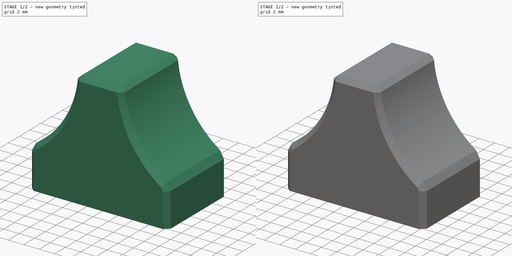
[diagram: build sequence overview — one tinted view per stage of 2, left to right]
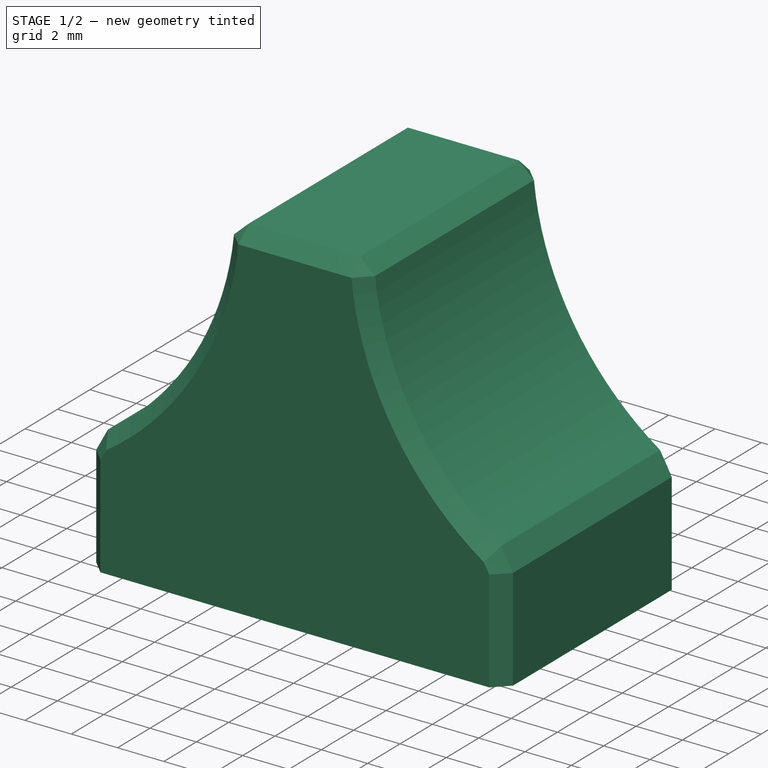
[diagram: stage 1 of 2 — iso view after this stage's code; geometry added in this stage tinted green]
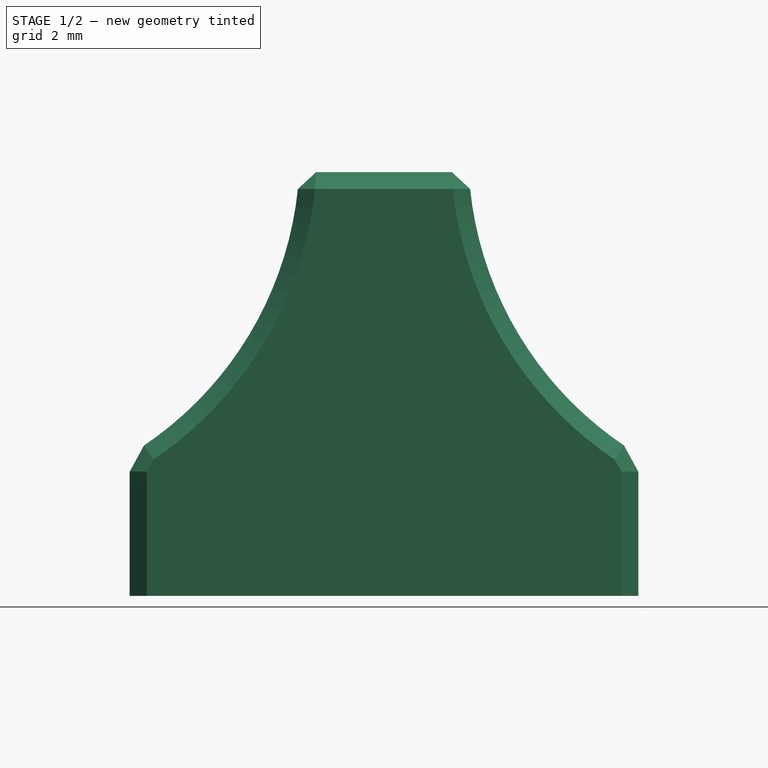
[diagram: stage 1 of 2 — front view after this stage's code; geometry added in this stage tinted green]
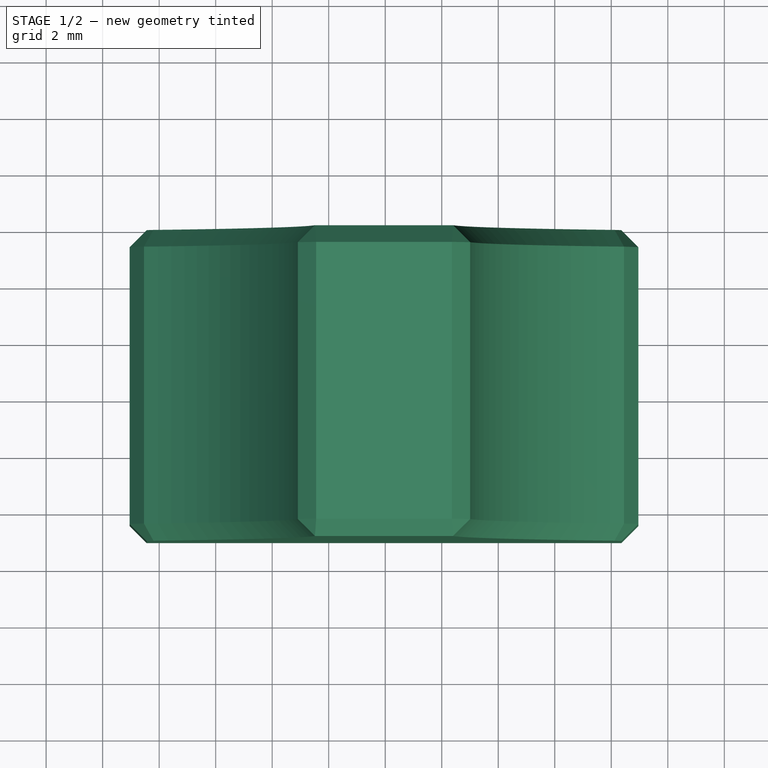
[diagram: stage 1 of 2 — top view after this stage's code; geometry added in this stage tinted green]
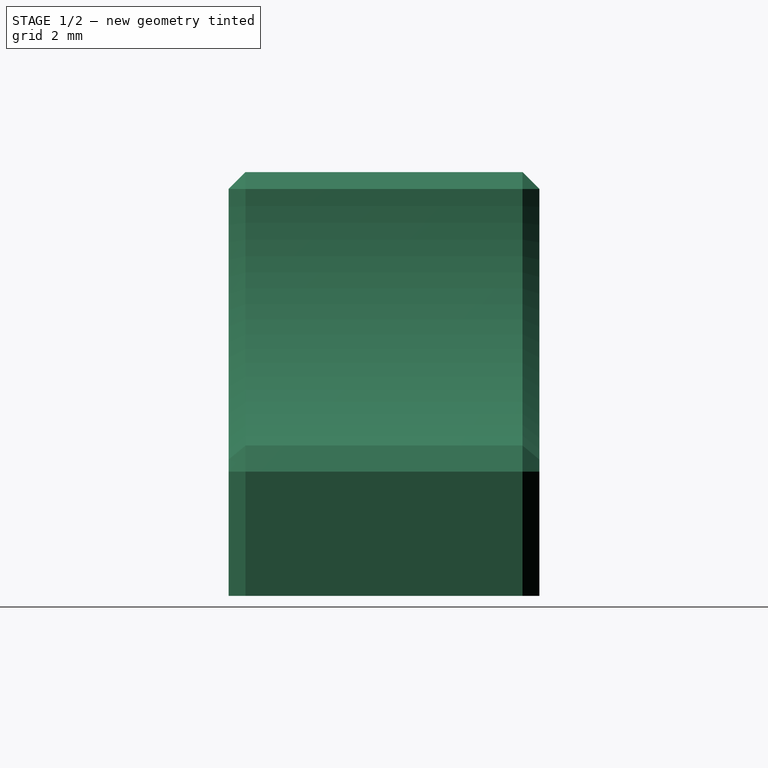
[diagram: stage 1 of 2 — right view after this stage's code; geometry added in this stage tinted green]
FCSTD DOCUMENT  (FreeCAD 1.0R39109 (Git))
Label: sliderbutton
License: All rights reserved
objects: Sketcher::SketchObject×3, PartDesign::Pocket×2, PartDesign::Pad×1, PartDesign::Chamfer×1, PartDesign::Body×1, App::Part×1
note: 19 computed .brp shape members not serialized (recipe doc carries the construction recipe); baked Part::Feature solids carry a one-line shape summary decoded from their .brp

FEATURE [Sketcher::SketchObject] Sketch
  ArcFitTolerance = 1e-06
  AttachmentSupport = -> [XZ_Plane001]
  FullyConstrained = false
  MakeInternals = false
  MapMode = 5
  Placement = pos=(0,0,0) rot=(1,0,0;1.5708rad)
  sketch-geometry (6):
    g0: LineSegment StartX=2.95667 StartY=4.04019 StartZ=0 EndX=20.9567 EndY=4.04019 EndZ=0
    g1: LineSegment StartX=20.9567 StartY=4.04019 StartZ=0 EndX=20.9567 EndY=9.04019 EndZ=0
    g2: LineSegment StartX=14.9567 StartY=19.0402 StartZ=0 EndX=8.95667 EndY=19.0402 EndZ=0
    g3: LineSegment StartX=2.95667 StartY=9.04019 StartZ=0 EndX=2.95667 EndY=4.04019 EndZ=0
    g4: ArcOfCircle CenterX=-3.52435 CenterY=19.7288 CenterZ=0 NormalX=0 NormalY=0 NormalZ=1 AngleXU=0 Radius=12.5 StartAngle=5.25746 EndAngle=6.22807
    g5: ArcOfCircle CenterX=27.4377 CenterY=19.7288 CenterZ=0 NormalX=0 NormalY=0 NormalZ=1 AngleXU=0 Radius=12.5 StartAngle=3.19671 EndAngle=4.16731
  constraints (18):
    c: Horizontal(g0)
    c: Coincident(g0,g1)
    c: Vertical(g1)
    c: Horizontal(g2)
    c: Coincident(g3,g0)
    c: Vertical(g3)
    c: DistanceX(g0,g0) = 18
    c: DistanceX(g2,g2) = 6
    c: DistanceX(g0,g2) = 6
    c: DistanceY(g0,g2) = 15
    c: DistanceY(g1,g1) = 5
    c: Equal(g1,g3)
    c: Coincident(g4,g2)
    c: Coincident(g4,g3)
    c: Coincident(g5,g2)
    c: Coincident(g5,g1)
    c: Radius(g5) = 12.5
    c: Radius(g4) = 12.5
FEATURE [PartDesign::Pad] Pad
  Direction = (0,-1,2e-16)
  Length = 11
  Length2 = 10
  Placement = pos=(0,0,0) rot=(1,0,0;1.5708rad)
  Profile = -> Sketch
  ReferenceAxis = -> Sketch [N_Axis]
  Refine = true
  Suppressed = false
  Type = 0
FEATURE [PartDesign::Chamfer] Chamfer
  Angle = 45
  Base = -> Pad [Edge18,Edge16,Edge13,Edge12,Edge15,Edge17,Edge14,Edge11,Edge8,Edge1,Edge4,Edge10,Edge3,Edge9]
  BaseFeature = -> Pad
  ChamferType = 0
  FlipDirection = false
  Placement = pos=(0,0,0) rot=(1,0,0;1.5708rad)
  Refine = true
  Size = 0.6
  Size2 = 1
  SupportTransform = false
  Suppressed = false
  UseAllEdges = false
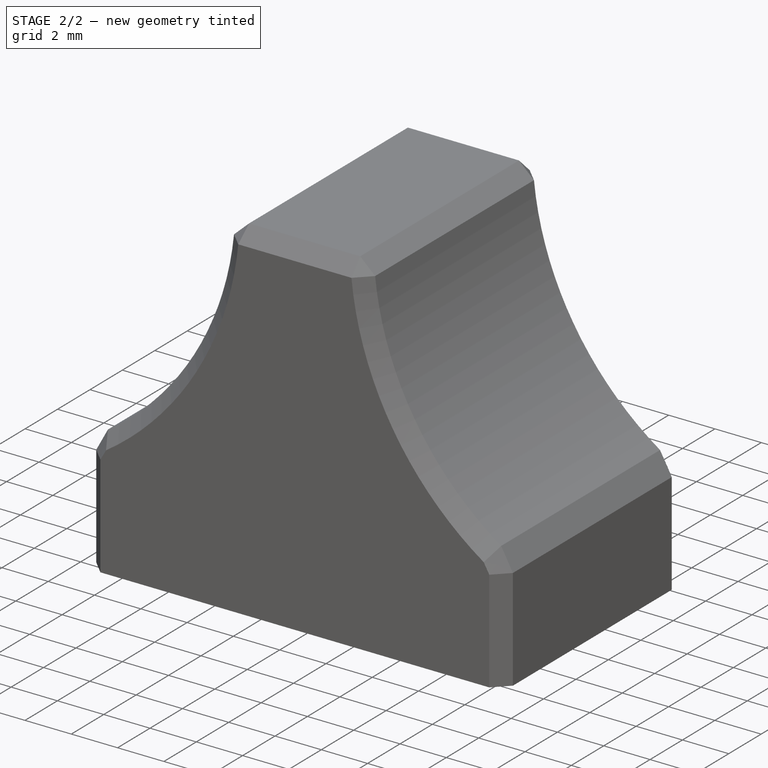
[diagram: stage 2 of 2 — iso view after this stage's code; geometry added in this stage tinted green]
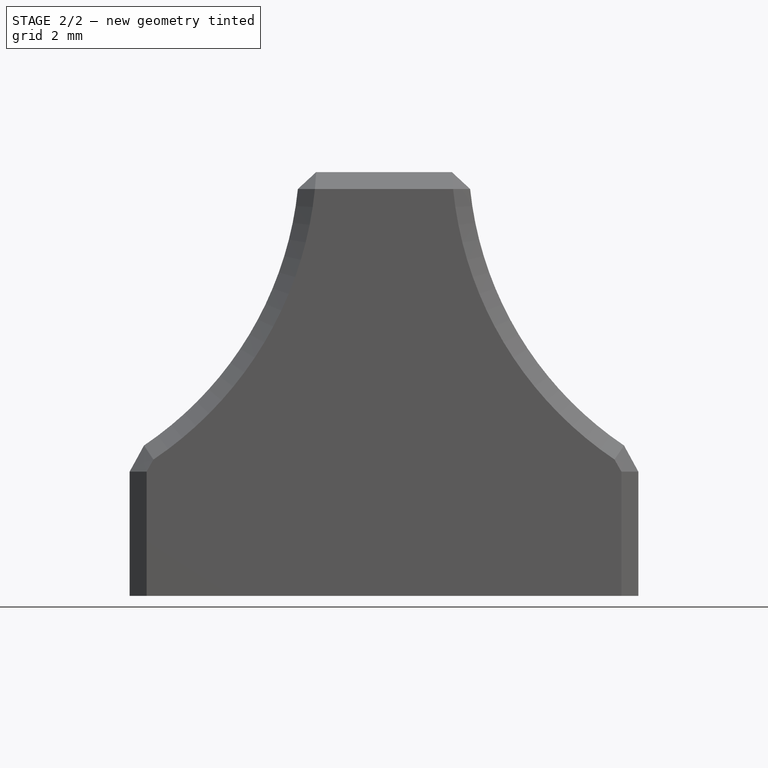
[diagram: stage 2 of 2 — front view after this stage's code; geometry added in this stage tinted green]
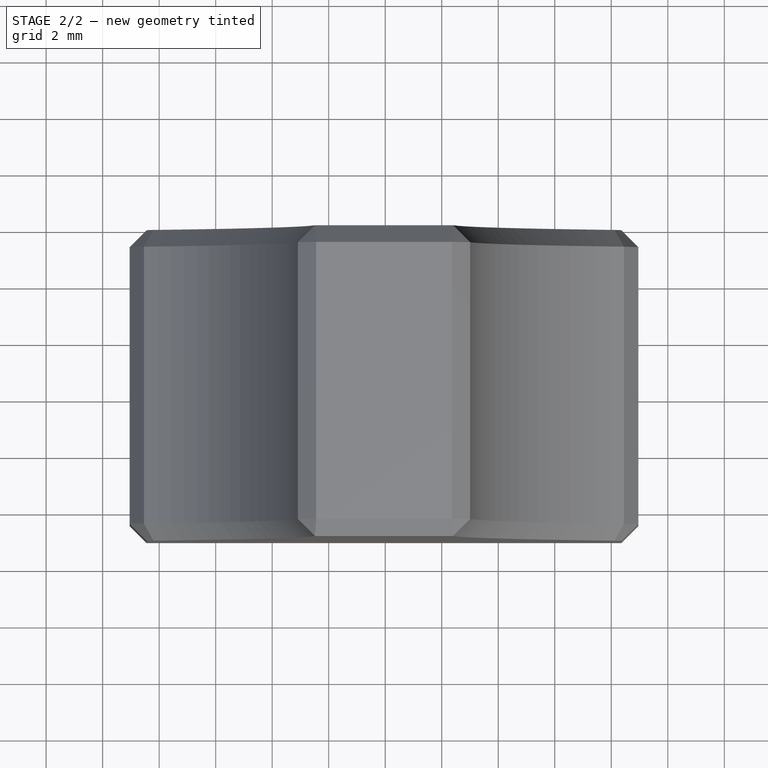
[diagram: stage 2 of 2 — top view after this stage's code; geometry added in this stage tinted green]
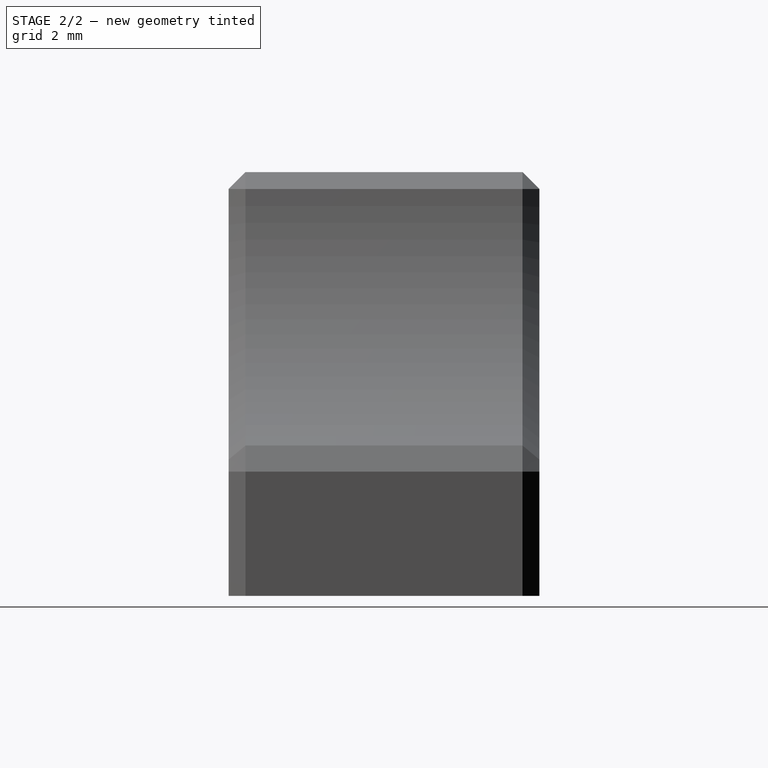
[diagram: stage 2 of 2 — right view after this stage's code; geometry added in this stage tinted green]
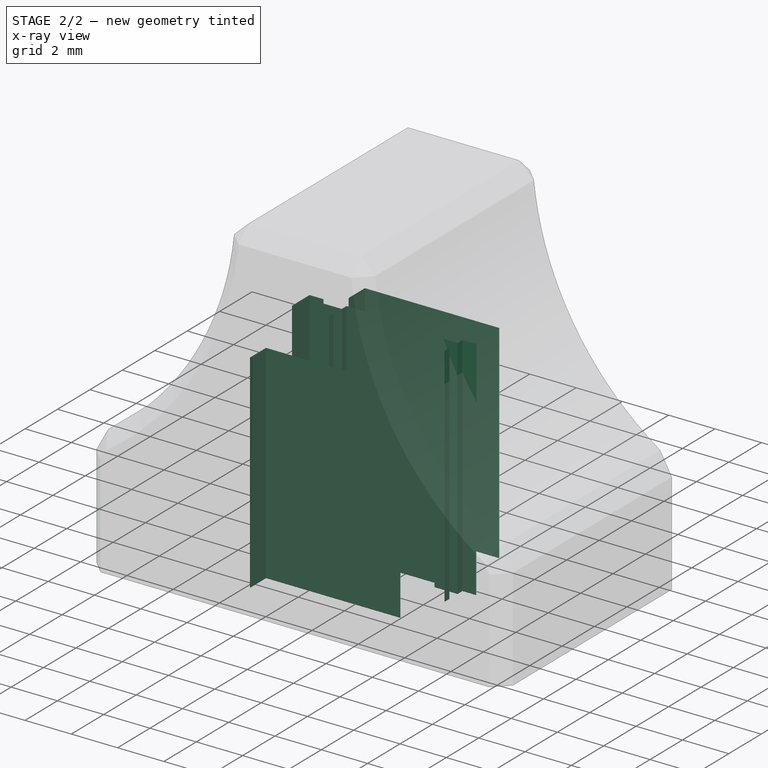
[diagram: stage 2 of 2 — x-ray composite at the iso view; earlier geometry ghosted, this stage's added geometry solid]
FEATURE [Sketcher::SketchObject] Sketch001
  ArcFitTolerance = 1e-06
  AttachmentSupport = -> [Chamfer]
  ExternalGeometry = -> [Chamfer]
  FullyConstrained = true
  MakeInternals = false
  MapMode = 5
  Placement = pos=(0,9e-16,4.04019) rot=(1,0,0;3.14159rad)
  sketch-geometry (24):
    g0: LineSegment StartX=8.35667 StartY=4.95 StartZ=0 EndX=8.35667 EndY=6.05 EndZ=0
    g1: LineSegment StartX=8.35667 StartY=6.05 StartZ=0 EndX=8.95667 EndY=6.05 EndZ=0
    g2: LineSegment StartX=8.95667 StartY=6.05 StartZ=0 EndX=8.95667 EndY=5.75 EndZ=0
    g3: LineSegment StartX=8.95667 StartY=5.75 StartZ=0 EndX=9.95667 EndY=5.75 EndZ=0
    g4: LineSegment StartX=9.95667 StartY=5.75 StartZ=0 EndX=9.95667 EndY=6.05 EndZ=0
    g5: LineSegment StartX=9.95667 StartY=6.05 StartZ=0 EndX=13.9567 EndY=6.05 EndZ=0
    g6: LineSegment StartX=13.9567 StartY=6.05 StartZ=0 EndX=13.9567 EndY=5.75 EndZ=0
    g7: LineSegment StartX=13.9567 StartY=5.75 StartZ=0 EndX=14.9567 EndY=5.75 EndZ=0
    g8: LineSegment StartX=14.9567 StartY=5.75 StartZ=0 EndX=14.9567 EndY=6.05 EndZ=0
    g9: LineSegment StartX=14.9567 StartY=6.05 StartZ=0 EndX=15.5567 EndY=6.05 EndZ=0
    g10: LineSegment StartX=15.5567 StartY=6.05 StartZ=0 EndX=15.5567 EndY=4.95 EndZ=0
    g11: LineSegment StartX=15.5567 StartY=4.95 StartZ=0 EndX=14.9567 EndY=4.95 EndZ=0
    g12: LineSegment StartX=14.9567 StartY=4.95 StartZ=0 EndX=14.9567 EndY=5.25 EndZ=0
    g13: LineSegment StartX=14.9567 StartY=5.25 StartZ=0 EndX=13.9567 EndY=5.25 EndZ=0
    g14: LineSegment StartX=13.9567 StartY=5.25 StartZ=0 EndX=13.9567 EndY=4.95 EndZ=0
    g15: LineSegment StartX=13.9567 StartY=4.95 StartZ=0 EndX=9.95667 EndY=4.95 EndZ=0
    g16: LineSegment StartX=9.95667 StartY=4.95 StartZ=0 EndX=9.95667 EndY=5.25 EndZ=0
    g17: LineSegment StartX=9.95667 StartY=5.25 StartZ=0 EndX=8.95667 EndY=5.25 EndZ=0
    g18: LineSegment StartX=8.95667 StartY=5.25 StartZ=0 EndX=8.95667 EndY=4.95 EndZ=0
    g19: LineSegment StartX=8.95667 StartY=4.95 StartZ=0 EndX=8.35667 EndY=4.95 EndZ=0
    g20: LineSegment [constr] StartX=8.35667 StartY=6.05 StartZ=0 EndX=2.95667 EndY=6.05 EndZ=0
    g21: LineSegment [constr] StartX=15.5567 StartY=6.05 StartZ=0 EndX=20.9567 EndY=6.05 EndZ=0
    g22: LineSegment [constr] StartX=13.9567 StartY=6.05 StartZ=0 EndX=13.9567 EndY=11 EndZ=0
    g23: LineSegment [constr] StartX=13.9567 StartY=4.95 StartZ=0 EndX=13.9567 EndY=0 EndZ=0
  constraints (72):
    c: Vertical(g0)
    c: Coincident(g0,g1)
    c: Horizontal(g1)
    c: Coincident(g1,g2)
    c: Vertical(g2)
    c: Coincident(g2,g3)
    c: Horizontal(g3)
    c: Coincident(g3,g4)
    c: Vertical(g4)
    c: Coincident(g4,g5)
    c: Horizontal(g5)
    c: Coincident(g5,g6)
    c: Vertical(g6)
    c: Coincident(g6,g7)
    c: Horizontal(g7)
    c: Coincident(g7,g8)
    c: Vertical(g8)
    c: Coincident(g8,g9)
    c: Horizontal(g9)
    c: Coincident(g9,g10)
    c: Vertical(g10)
    c: Coincident(g10,g11)
    c: Horizontal(g11)
    c: Coincident(g11,g12)
    c: Vertical(g12)
    c: Coincident(g12,g13)
    c: Horizontal(g13)
    c: Coincident(g13,g14)
    c: Vertical(g14)
    c: Coincident(g14,g15)
    c: Horizontal(g15)
    c: Coincident(g15,g16)
    c: Vertical(g16)
    c: Coincident(g16,g17)
    c: Horizontal(g17)
    c: Coincident(g17,g18)
    c: Vertical(g18)
    c: Coincident(g18,g19)
    c: Coincident(g19,g0)
    c: Horizontal(g19)
    c: DistanceX(g1,g1) = 0.6
    c: Equal(g1,g19)
    c: Equal(g19,g11)
    c: Equal(g11,g9)
    c: Distance(g3,g3) = 1
    c: Equal(g3,g17)
    c: Equal(g17,g13)
    c: Equal(g13,g7)
    c: DistanceX(g0,g10) = 7.2
    c: Distance(g10,g10) = 1.1
    c: Horizontal(g9,g5)
    c: Horizontal(g5,g0)
    c: DistanceY(g16,g3) = 0.5
    c: DistanceY(g12,g7) = 0.5
    c: Horizontal(g0,g14)
    c: Horizontal(g14,g10)
    c: Equal(g12,g8)
    c: Equal(g8,g4)
    c: Coincident(g20,g0)
    c: PointOnObject(g20,g-5)
    c: Horizontal(g20)
    c: Coincident(g21,g9)
    c: PointOnObject(g21,g-4)
    c: Horizontal(g21)
    c: Coincident(g22,g5)
    c: PointOnObject(g22,g-3)
    c: Vertical(g22)
    c: Coincident(g23,g14)
    c: PointOnObject(g23,g-6)
    c: Vertical(g23)
    c: Equal(g20,g21)
    c: Equal(g22,g23)
FEATURE [PartDesign::Pocket] Pocket
  BaseFeature = -> Chamfer
  Direction = (0,0,1)
  Length = 9.8
  Length2 = 5
  Placement = pos=(0,0,0) rot=(1,0,0;1.5708rad)
  Profile = -> Sketch001
  ReferenceAxis = -> Sketch001 [N_Axis]
  Refine = true
  Suppressed = false
  Type = 0
FEATURE [Sketcher::SketchObject] Sketch003
  ArcFitTolerance = 1e-06
  AttachmentSupport = -> [Pocket]
  FullyConstrained = false
  MakeInternals = false
  MapMode = 5
  Placement = pos=(0,9e-16,4.04019) rot=(1,0,0;3.14159rad)
  sketch-geometry (8):
    g0: LineSegment StartX=14.4498 StartY=8.05 StartZ=0 EndX=14.4498 EndY=9.05 EndZ=0
    g1: LineSegment StartX=14.4498 StartY=9.05 StartZ=0 EndX=8.64468 EndY=9.05 EndZ=0
    g2: LineSegment StartX=8.64468 StartY=9.05 StartZ=0 EndX=8.64468 EndY=8.05 EndZ=0
    g3: LineSegment StartX=8.64468 StartY=8.05 StartZ=0 EndX=14.4498 EndY=8.05 EndZ=0
    g4: LineSegment StartX=8.64468 StartY=2.95 StartZ=0 EndX=8.64468 EndY=1.95 EndZ=0
    g5: LineSegment StartX=8.64468 StartY=1.95 StartZ=0 EndX=14.4498 EndY=1.95 EndZ=0
    g6: LineSegment StartX=14.4498 StartY=1.95 StartZ=0 EndX=14.4498 EndY=2.95 EndZ=0
    g7: LineSegment StartX=14.4498 StartY=2.95 StartZ=0 EndX=8.64468 EndY=2.95 EndZ=0
  constraints (22):
    c: Coincident(g0,g1)
    c: Coincident(g1,g2)
    c: Coincident(g2,g3)
    c: Coincident(g3,g0)
    c: Vertical(g0)
    c: Vertical(g2)
    c: Horizontal(g1)
    c: Horizontal(g3)
    c: Coincident(g4,g5)
    c: Coincident(g5,g6)
    c: Coincident(g6,g7)
    c: Coincident(g7,g4)
    c: Vertical(g4)
    c: Vertical(g6)
    c: Horizontal(g5)
    c: Horizontal(g7)
    c: Distance(g-3,g3) = 2
    c: Distance(g2,g2) = 1
    c: Distance(g-4,g7) = 2
    c: Distance(g4,g4) = 1
    c: Vertical(g2,g4)
    c: Vertical(g0,g6)
FEATURE [PartDesign::Pocket] Pocket001
  BaseFeature = -> Pocket
  Direction = (0,0,1)
  Length = 9
  Length2 = 5
  Placement = pos=(0,0,0) rot=(1,0,0;1.5708rad)
  Profile = -> Sketch003
  ReferenceAxis = -> Sketch003 [N_Axis]
  Refine = true
  Suppressed = false
  Type = 0
FEATURE [PartDesign::Body] Body
  AllowCompound = true
  Group = -> [Sketch,Pad,Chamfer,Sketch001,Pocket,Sketch003,Pocket001]
  Origin = -> Origin001
  Tip = -> Pocket001
FEATURE [App::Part] Part
  Group = -> [Body]
  Origin = -> Origin
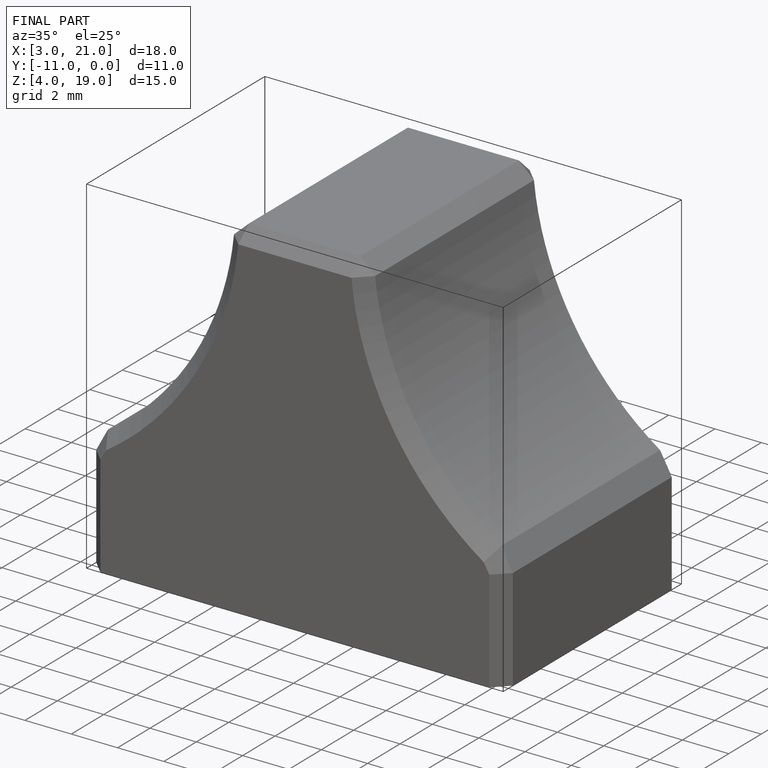
[diagram: finished part — iso view with bounding-box wireframe]
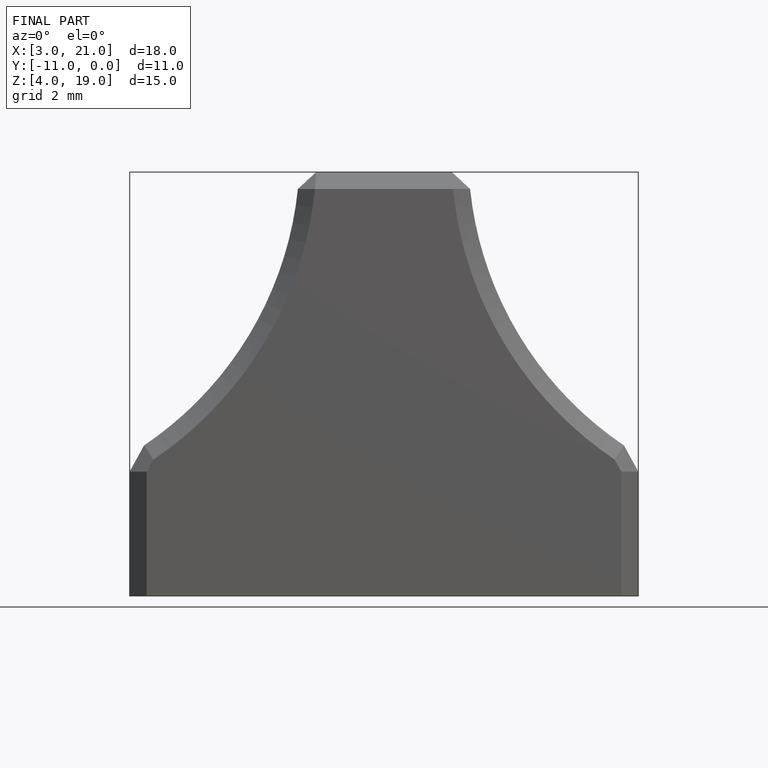
[diagram: finished part — front view with bounding-box wireframe]
